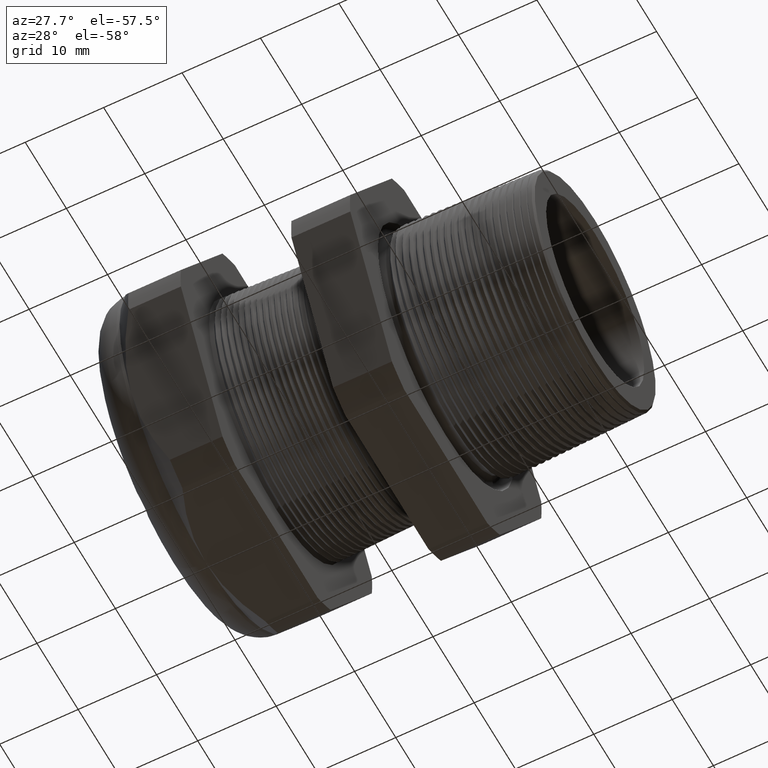
[diagram: clean part render]
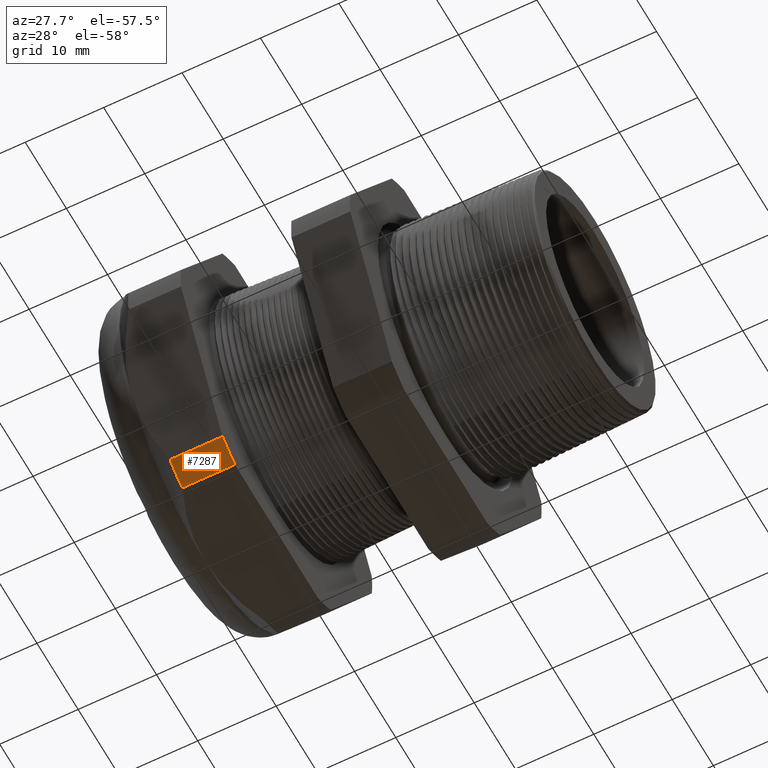
[diagram: same view with one face highlighted and labeled with its STEP entity id]
A machine part, auxiliary view. The second image highlights one B-rep face of the part: STEP entity #7287.
In plain terms, the highlighted cylindrical surface (partial cylindrical patch) has radius 23.26 mm, axis along (-1, 0, 0).
Its self-contained STEP definition (entity closure, byte-faithful):
#2781 = CARTESIAN_POINT ( 'NONE',  ( -1.160314960629921200, -0.3974582525247148400, -0.8250000000000000700 ) ) ;
#2782 = CARTESIAN_POINT ( 'NONE',  ( -1.160314960629921200, -0.5157418318598037100, -0.7567089436301741600 ) ) ;
#2820 = CARTESIAN_POINT ( 'NONE',  ( -1.423895669291338500, -0.3974582525247147800, -0.8250000000000000700 ) ) ;
#2825 = CARTESIAN_POINT ( 'NONE',  ( -1.423895669291338700, -0.5157418318598037100, -0.7567089436301741600 ) ) ;
#2826 = DIRECTION ( 'NONE',  ( -1.000000000000000000, 0.0000000000000000000, 0.0000000000000000000 ) ) ;
#2827 = VECTOR ( 'NONE', #2826, 39.37007874015748100 ) ;
#2828 = CARTESIAN_POINT ( 'NONE',  ( 0.4399999999999999500, -0.5157418318598037100, -0.7567089436301741600 ) ) ;
#2829 = LINE ( 'NONE', #2828, #2827 ) ;
#2830 = DIRECTION ( 'NONE',  ( -1.000000000000000000, 0.0000000000000000000, 0.0000000000000000000 ) ) ;
#2831 = VECTOR ( 'NONE', #2830, 39.37007874015748100 ) ;
#2832 = CARTESIAN_POINT ( 'NONE',  ( 0.4399999999999999500, -0.3974582525247148400, -0.8250000000000000700 ) ) ;
#2833 = LINE ( 'NONE', #2832, #2831 ) ;
#2851 = FACE_OUTER_BOUND ( 'NONE', #7255, .T. ) ;
#2854 = DIRECTION ( 'NONE',  ( 0.0000000000000000000, 0.0000000000000000000, -1.000000000000000000 ) ) ;
#2855 = DIRECTION ( 'NONE',  ( 1.000000000000000000, 0.0000000000000000000, 0.0000000000000000000 ) ) ;
#2856 = CARTESIAN_POINT ( 'NONE',  ( -1.423895669291338700, 0.0000000000000000000, 0.0000000000000000000 ) ) ;
#2857 = AXIS2_PLACEMENT_3D ( 'NONE', #2856, #2855, #2854 ) ;
#2858 = CIRCLE ( 'NONE', #2857, 0.9157500000000000600 ) ;
#2889 = DIRECTION ( 'NONE',  ( 0.0000000000000000000, 0.0000000000000000000, 1.000000000000000000 ) ) ;
#2890 = DIRECTION ( 'NONE',  ( -1.000000000000000000, 0.0000000000000000000, 0.0000000000000000000 ) ) ;
#2891 = AXIS2_PLACEMENT_3D ( 'NONE', #2894, #2890, #2889 ) ;
#2892 = CYLINDRICAL_SURFACE ( 'NONE', #2891, 0.9157500000000000600 ) ;
#2894 = CARTESIAN_POINT ( 'NONE',  ( 0.4399999999999999500, 0.0000000000000000000, 0.0000000000000000000 ) ) ;
#2983 = DIRECTION ( 'NONE',  ( 0.0000000000000000000, 0.0000000000000000000, -1.000000000000000000 ) ) ;
#2984 = DIRECTION ( 'NONE',  ( 1.000000000000000000, 0.0000000000000000000, 0.0000000000000000000 ) ) ;
#2985 = CARTESIAN_POINT ( 'NONE',  ( -1.160314960629921200, 0.0000000000000000000, 0.0000000000000000000 ) ) ;
#2986 = AXIS2_PLACEMENT_3D ( 'NONE', #2985, #2984, #2983 ) ;
#2987 = CIRCLE ( 'NONE', #2986, 0.9157500000000000600 ) ;
#7052 = ORIENTED_EDGE ( 'NONE', *, *, #7263, .F. ) ;
#7255 = EDGE_LOOP ( 'NONE', ( #7286, #7272, #7052, #7325 ) ) ;
#7260 = VERTEX_POINT ( 'NONE', #2782 ) ;
#7261 = VERTEX_POINT ( 'NONE', #2781 ) ;
#7263 = EDGE_CURVE ( 'NONE', #7261, #7269, #2833, .T. ) ;
#7264 = EDGE_CURVE ( 'NONE', #7260, #7265, #2829, .T. ) ;
#7265 = VERTEX_POINT ( 'NONE', #2825 ) ;
#7269 = VERTEX_POINT ( 'NONE', #2820 ) ;
#7272 = ORIENTED_EDGE ( 'NONE', *, *, #7281, .T. ) ;
#7281 = EDGE_CURVE ( 'NONE', #7265, #7269, #2858, .T. ) ;
#7286 = ORIENTED_EDGE ( 'NONE', *, *, #7264, .T. ) ;
#7287 = ADVANCED_FACE ( 'NONE', ( #2851 ), #2892, .T. ) ;
#7322 = EDGE_CURVE ( 'NONE', #7260, #7261, #2987, .T. ) ;
#7325 = ORIENTED_EDGE ( 'NONE', *, *, #7322, .F. ) ;